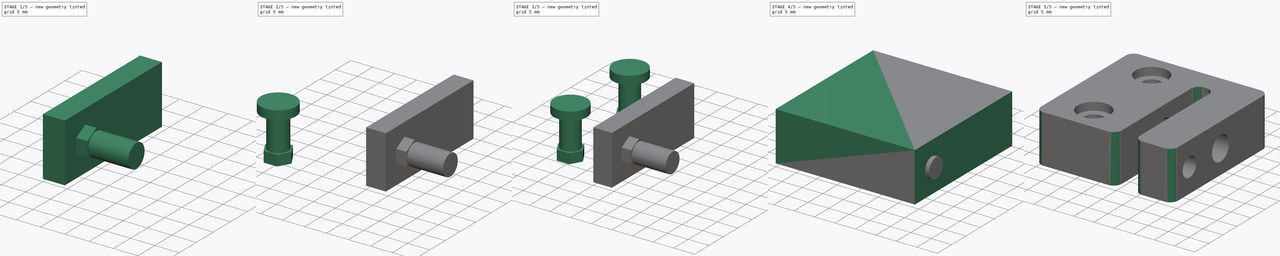
[diagram: build sequence overview — one tinted view per stage of 5, left to right]
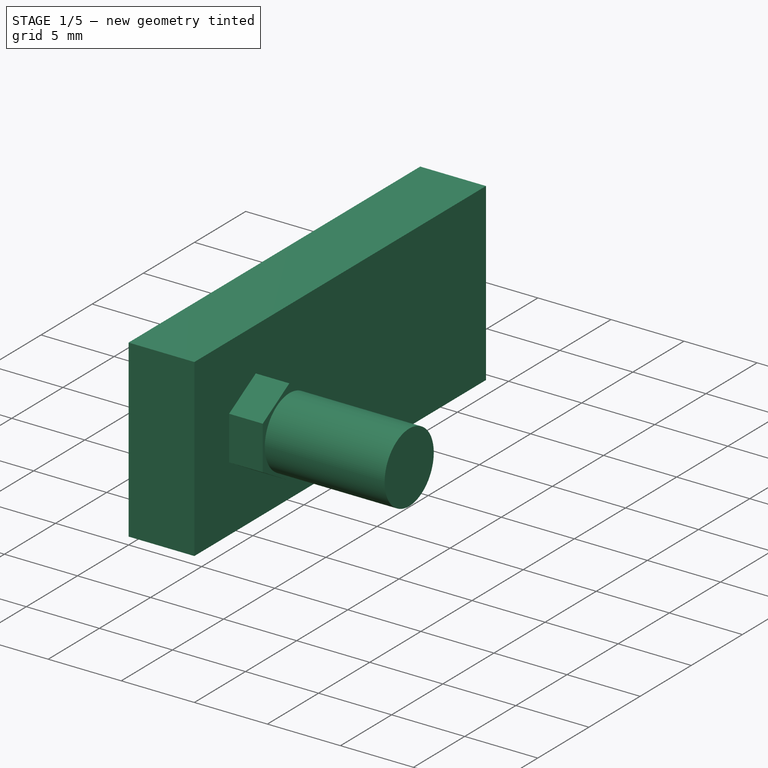
[diagram: stage 1 of 5 — iso view after this stage's code; geometry added in this stage tinted green]
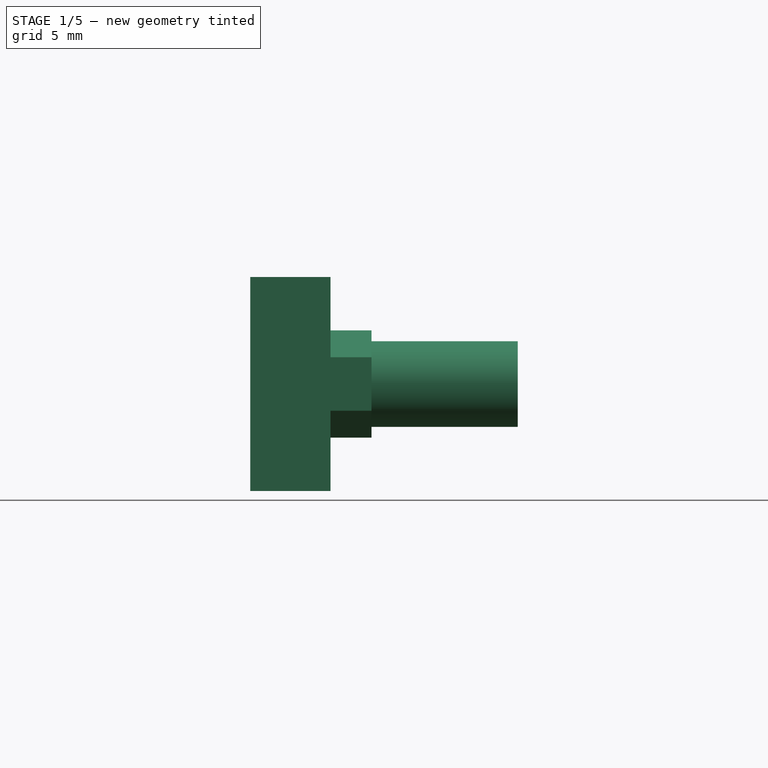
[diagram: stage 1 of 5 — front view after this stage's code; geometry added in this stage tinted green]
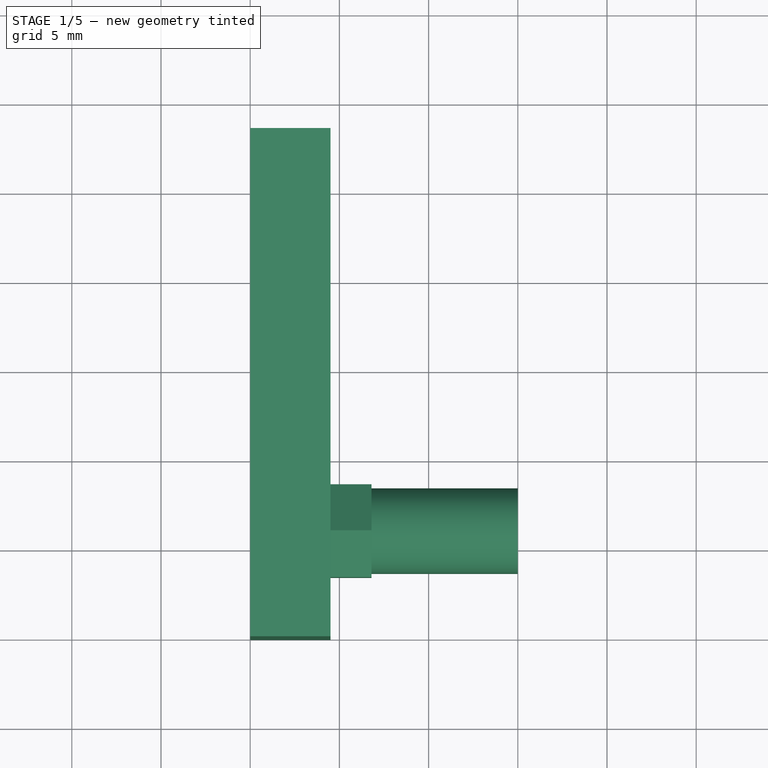
[diagram: stage 1 of 5 — top view after this stage's code; geometry added in this stage tinted green]
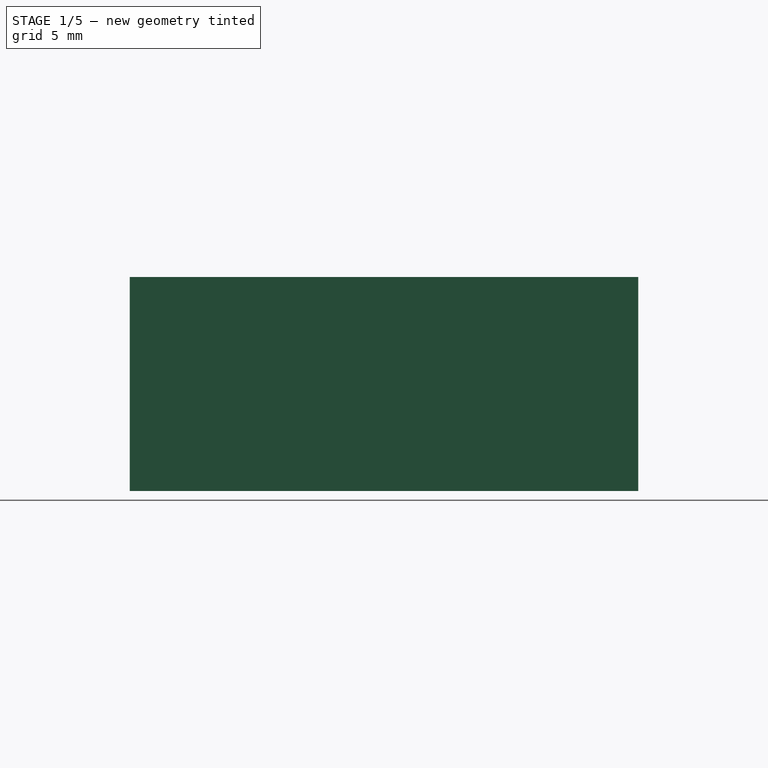
[diagram: stage 1 of 5 — right view after this stage's code; geometry added in this stage tinted green]
FCSTD DOCUMENT  (FreeCAD 0.21R0.20.1)
Label: AntiBacklashNutT8
License: All rights reserved
LicenseURL: https://en.wikipedia.org/wiki/All_rights_reserved
objects: Part::Cylinder×6, Part::MultiFuse×4, App::Link×3, Part::Box×2, Part::Cut×2, Sketcher::SketchObject×1, Part::Extrusion×1, Part::Fillet×1
note: 17 computed .brp shape members not serialized (recipe doc carries the construction recipe); baked Part::Feature solids carry a one-line shape summary decoded from their .brp
EXTERNAL_REF file=../../Fastener/Templates/Nut_DIN934_M4.FCStd obj=Extrude

FEATURE [Part::Box] Box001  label="Cube001"
  AttacherType = Attacher::AttachEngine3D
  Height = 12
  Length = 4.5
  Placement = pos=(20,0,0) rot=(0,0,1;0rad)
  Width = 28.5
FEATURE [Part::Cylinder] Cylinder005
  Angle = 360
  AttacherType = Attacher::AttachEngine3D
  FirstAngle = 0
  Height = 11
  Placement = pos=(24,6,6) rot=(0,1,0;1.5708rad)
  Radius = 2.4
  SecondAngle = 0
FEATURE [Part::MultiFuse] Fusion003
  Shapes = -> [Link002,Cylinder005]
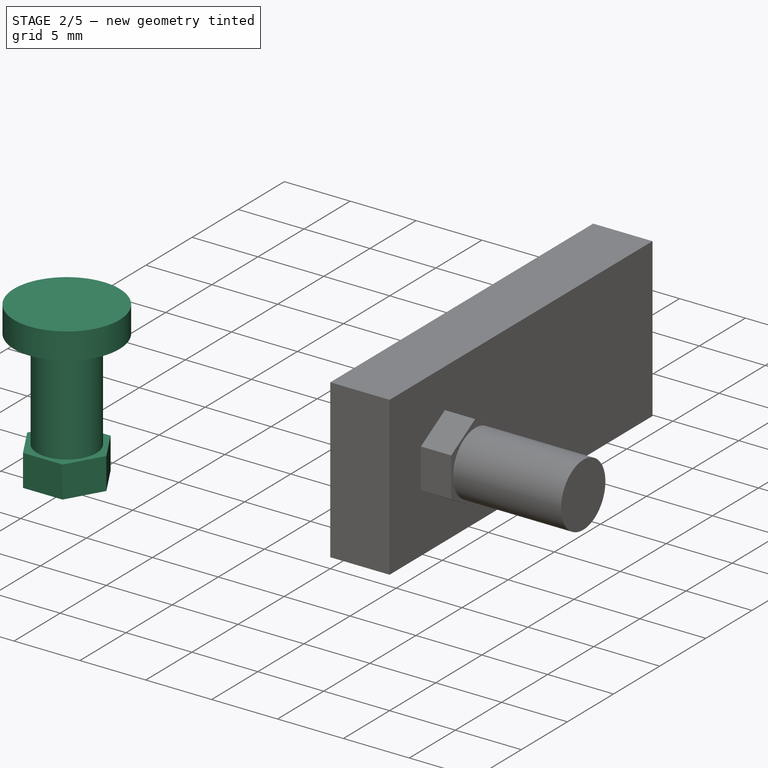
[diagram: stage 2 of 5 — iso view after this stage's code; geometry added in this stage tinted green]
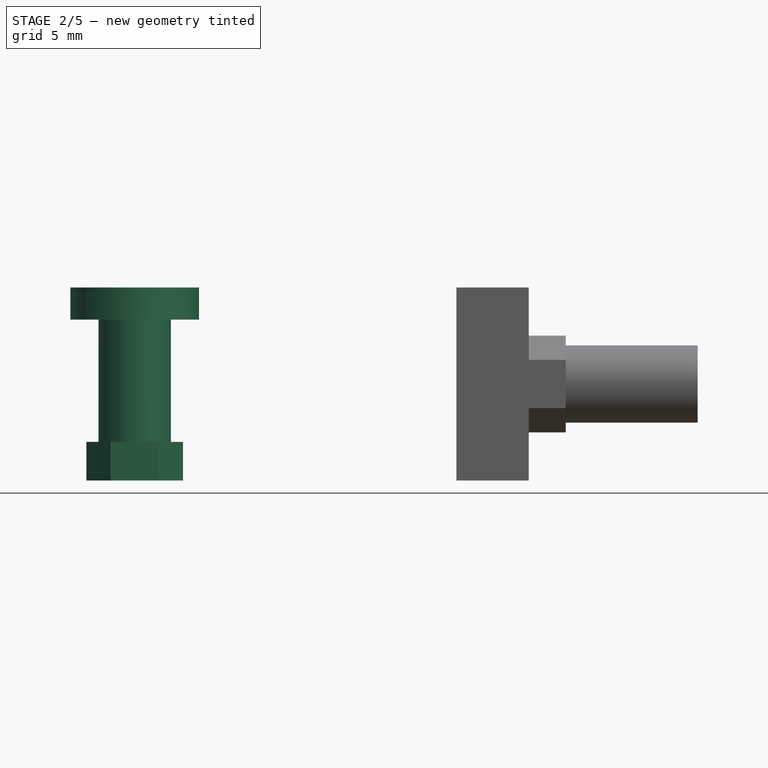
[diagram: stage 2 of 5 — front view after this stage's code; geometry added in this stage tinted green]
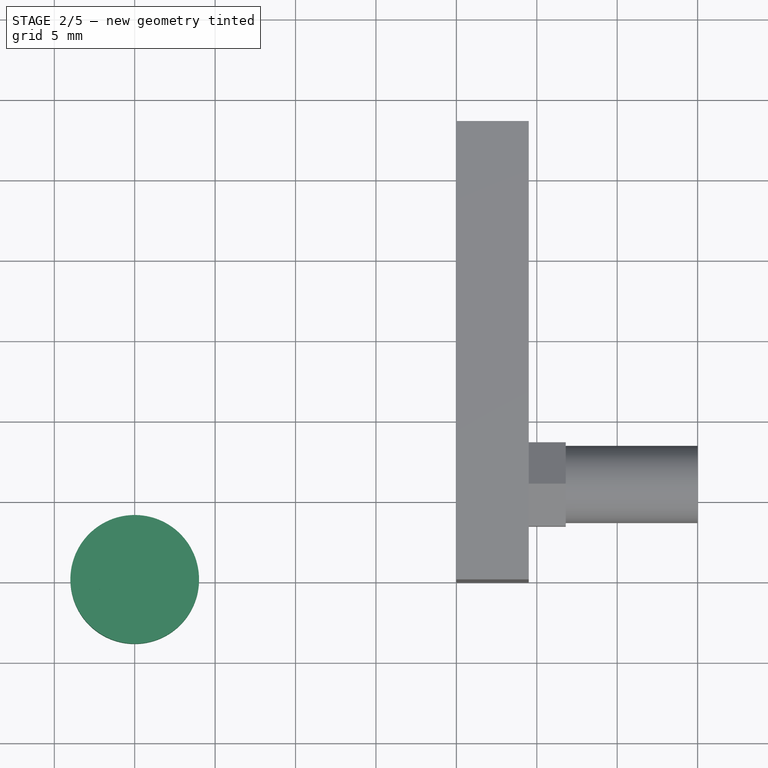
[diagram: stage 2 of 5 — top view after this stage's code; geometry added in this stage tinted green]
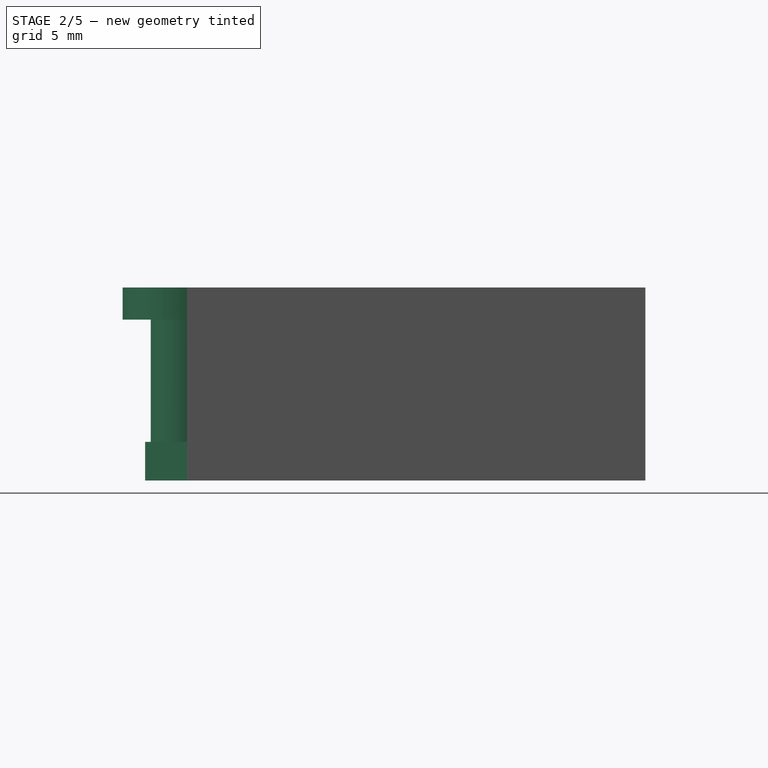
[diagram: stage 2 of 5 — right view after this stage's code; geometry added in this stage tinted green]
FEATURE [Sketcher::SketchObject] Sketch
  FullyConstrained = true
  sketch-geometry (7):
    g0: LineSegment StartX=-3.005 StartY=0 StartZ=0 EndX=-1.5025 EndY=-2.60241 EndZ=0
    g1: LineSegment StartX=-1.5025 StartY=-2.60241 StartZ=0 EndX=1.5025 EndY=-2.60241 EndZ=0
    g2: LineSegment StartX=1.5025 StartY=-2.60241 StartZ=0 EndX=3.005 EndY=-9.7513e-12 EndZ=0
    g3: LineSegment StartX=3.005 StartY=-9.7512e-12 StartZ=0 EndX=1.5025 EndY=2.60241 EndZ=0
    g4: LineSegment StartX=1.5025 StartY=2.60241 StartZ=0 EndX=-1.5025 EndY=2.60241 EndZ=0
    g5: LineSegment StartX=-1.5025 StartY=2.60241 StartZ=0 EndX=-3.005 EndY=0 EndZ=0
    g6: Circle CenterX=0 CenterY=0 CenterZ=0 NormalX=0 NormalY=0 NormalZ=1 AngleXU=0 Radius=3.005
  constraints (16):
    c: Coincident(g0,g1)
    c: Coincident(g1,g2)
    c: Coincident(g2,g3)
    c: Coincident(g3,g4)
    c: Coincident(g4,g5)
    c: Coincident(g5,g0)
    c: Equal(g0, g1-g5) x5
    c: PointOnObject(g0,g6)
    c: PointOnObject(g1,g6)
    c: PointOnObject(g2,g6)
    c: PointOnObject(g3,g6)
    c: PointOnObject(g4,g6)
    c: PointOnObject(g5,g6)
    c: Coincident(g6,g-1)
    c: PointOnObject(g5,g-1)
    c: DistanceX(g0,g2) = 6.01
FEATURE [Part::Extrusion] Extrude  label="DIN934_M005"
  Base = -> Sketch
  Dir = (0,0,1)
  DirMode = 2
  FaceMakerClass = Part::FaceMakerBullseye
  LengthFwd = 2.4
  LengthRev = 0
  Solid = true
  Symmetric = false
FEATURE [Part::Cylinder] Cylinder003
  Angle = 360
  AttacherType = Attacher::AttachEngine3D
  FirstAngle = 0
  Height = 12
  Radius = 2.25
  SecondAngle = 0
FEATURE [Part::Cylinder] Cylinder004
  Angle = 360
  AttacherType = Attacher::AttachEngine3D
  FirstAngle = 0
  Height = 2
  Placement = pos=(0,0,10) rot=(0,0,1;0rad)
  Radius = 4
  SecondAngle = 0
FEATURE [Sketcher::SketchObject] Sketch
  FullyConstrained = true
  sketch-geometry (7):
    g0: LineSegment StartX=-3.005 StartY=0 StartZ=0 EndX=-1.5025 EndY=-2.60241 EndZ=0
    g1: LineSegment StartX=-1.5025 StartY=-2.60241 StartZ=0 EndX=1.5025 EndY=-2.60241 EndZ=0
    g2: LineSegment StartX=1.5025 StartY=-2.60241 StartZ=0 EndX=3.005 EndY=-9.7513e-12 EndZ=0
    g3: LineSegment StartX=3.005 StartY=-9.7512e-12 StartZ=0 EndX=1.5025 EndY=2.60241 EndZ=0
    g4: LineSegment StartX=1.5025 StartY=2.60241 StartZ=0 EndX=-1.5025 EndY=2.60241 EndZ=0
    g5: LineSegment StartX=-1.5025 StartY=2.60241 StartZ=0 EndX=-3.005 EndY=0 EndZ=0
    g6: Circle CenterX=0 CenterY=0 CenterZ=0 NormalX=0 NormalY=0 NormalZ=1 AngleXU=0 Radius=3.005
  constraints (16):
    c: Coincident(g0,g1)
    c: Coincident(g1,g2)
    c: Coincident(g2,g3)
    c: Coincident(g3,g4)
    c: Coincident(g4,g5)
    c: Coincident(g5,g0)
    c: Equal(g0, g1-g5) x5
    c: PointOnObject(g0,g6)
    c: PointOnObject(g1,g6)
    c: PointOnObject(g2,g6)
    c: PointOnObject(g3,g6)
    c: PointOnObject(g4,g6)
    c: PointOnObject(g5,g6)
    c: Coincident(g6,g-1)
    c: PointOnObject(g5,g-1)
    c: DistanceX(g0,g2) = 6.01
FEATURE [Part::Extrusion] Extrude  label="DIN934_M3"
  Base = -> Sketch
  Dir = (0,0,1)
  DirMode = 2
  FaceMakerClass = Part::FaceMakerBullseye
  LengthFwd = 2.4
  LengthRev = 0
  Solid = true
  Symmetric = false
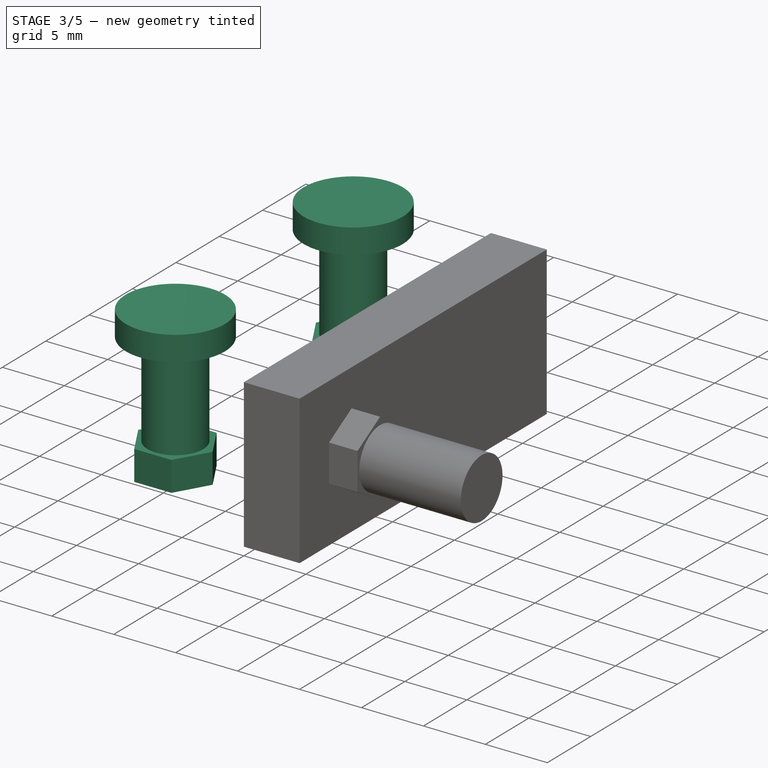
[diagram: stage 3 of 5 — iso view after this stage's code; geometry added in this stage tinted green]
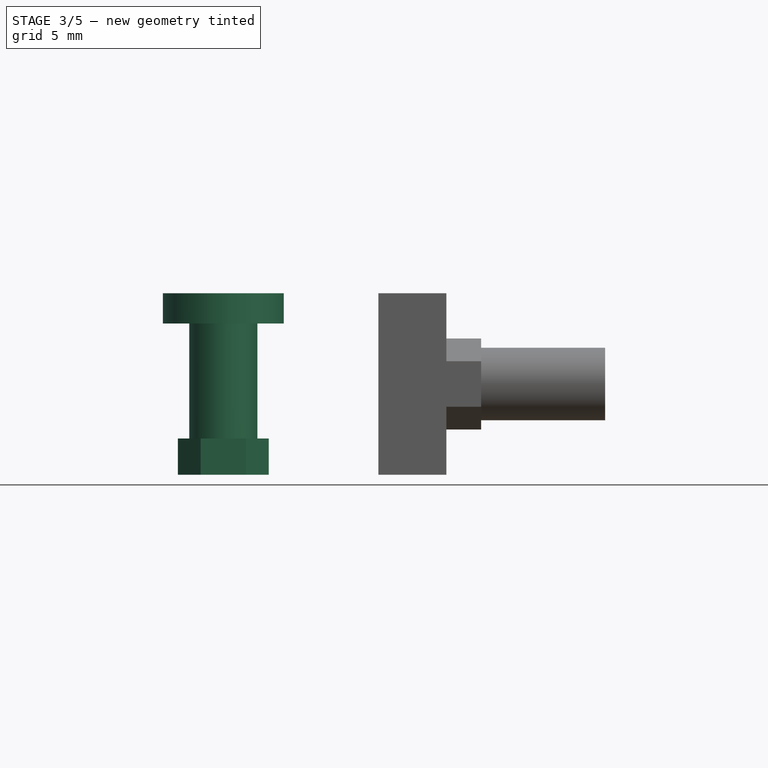
[diagram: stage 3 of 5 — front view after this stage's code; geometry added in this stage tinted green]
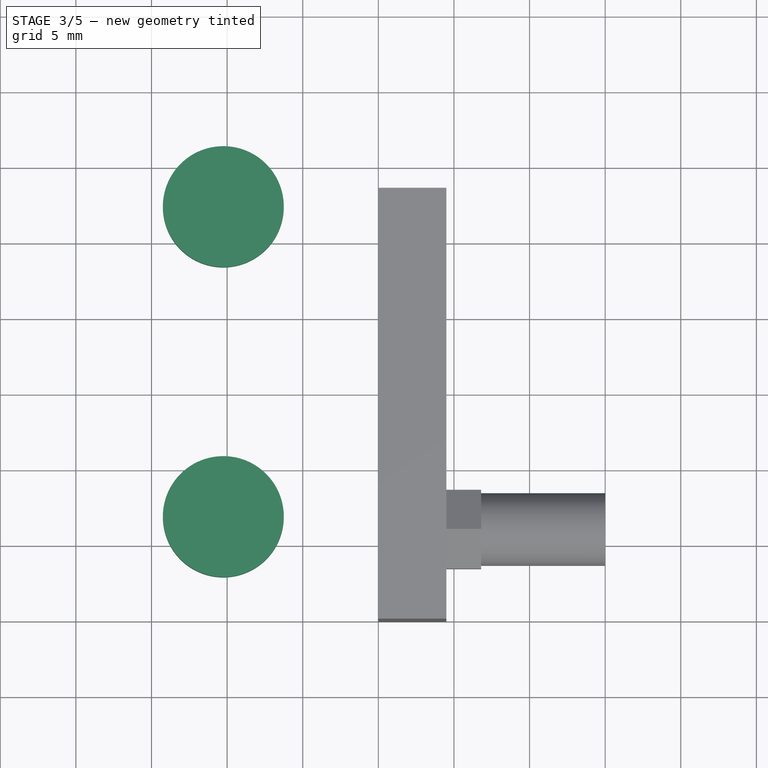
[diagram: stage 3 of 5 — top view after this stage's code; geometry added in this stage tinted green]
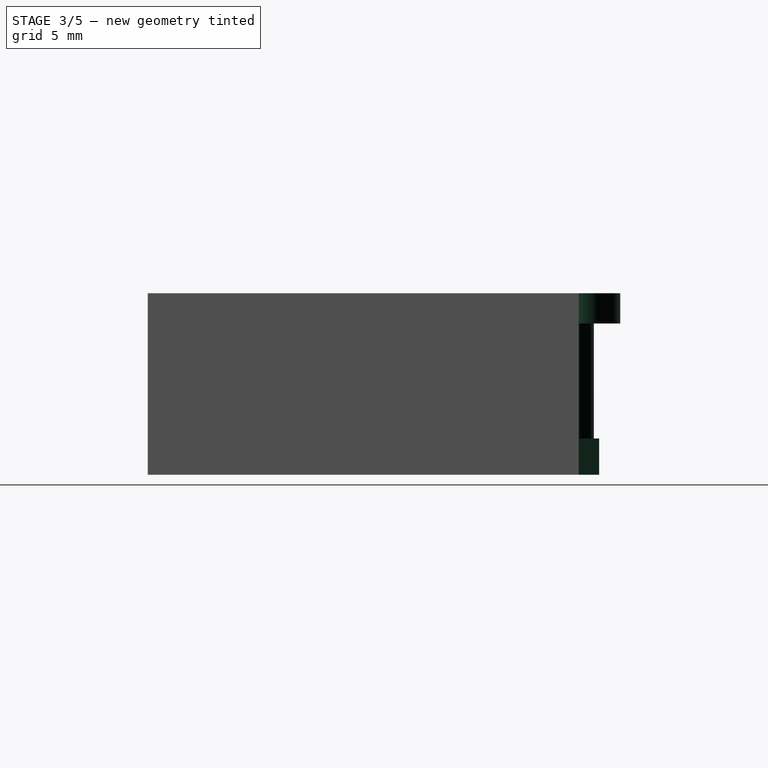
[diagram: stage 3 of 5 — right view after this stage's code; geometry added in this stage tinted green]
FEATURE [Part::Cylinder] Cylinder001  label="Cylinder"
  Angle = 360
  AttacherType = Attacher::AttachEngine3D
  FirstAngle = 0
  Height = 12
  Radius = 2.25
  SecondAngle = 0
FEATURE [Part::Cylinder] Cylinder002
  Angle = 360
  AttacherType = Attacher::AttachEngine3D
  FirstAngle = 0
  Height = 2
  Placement = pos=(0,0,10) rot=(0,0,1;0rad)
  Radius = 4
  SecondAngle = 0
FEATURE [App::Link] Link  label="DIN934_M4"
  LinkedObject = -> <external ../../Fastener/Templates/Nut_DIN934_M4.FCStd>#Extrude
FEATURE [Part::MultiFuse] Fusion
  Placement = pos=(9.75,6.75,0) rot=(0,0,1;0rad)
  Shapes = -> [Link,Cylinder001,Cylinder002]
FEATURE [App::Link] Link001  label="DIN934_M006"
  LinkedObject = -> Extrude
FEATURE [Part::MultiFuse] Fusion001
  Placement = pos=(9.75,27.25,0) rot=(0,0,1;0rad)
  Shapes = -> [Link001,Cylinder003,Cylinder004]
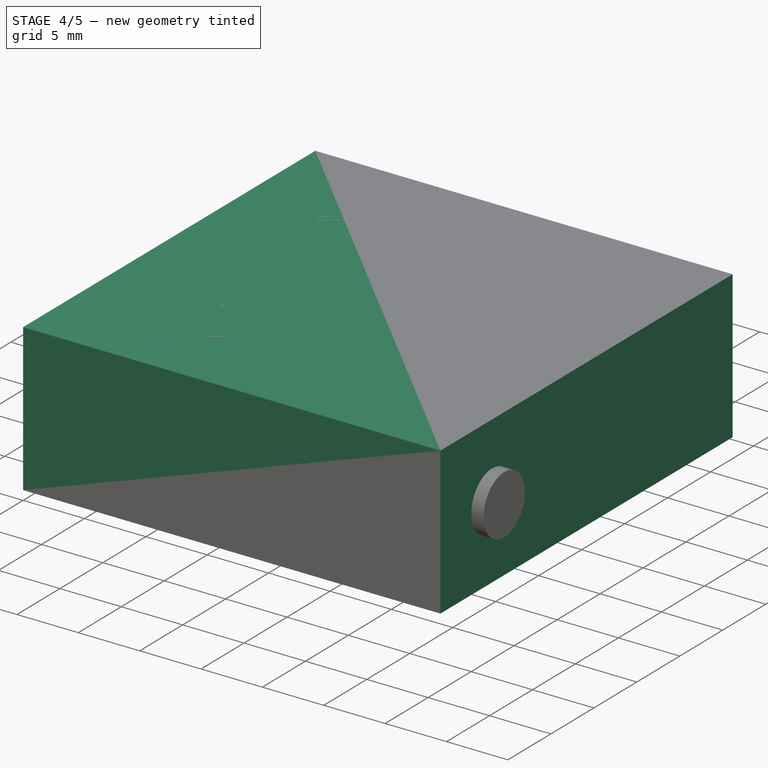
[diagram: stage 4 of 5 — iso view after this stage's code; geometry added in this stage tinted green]
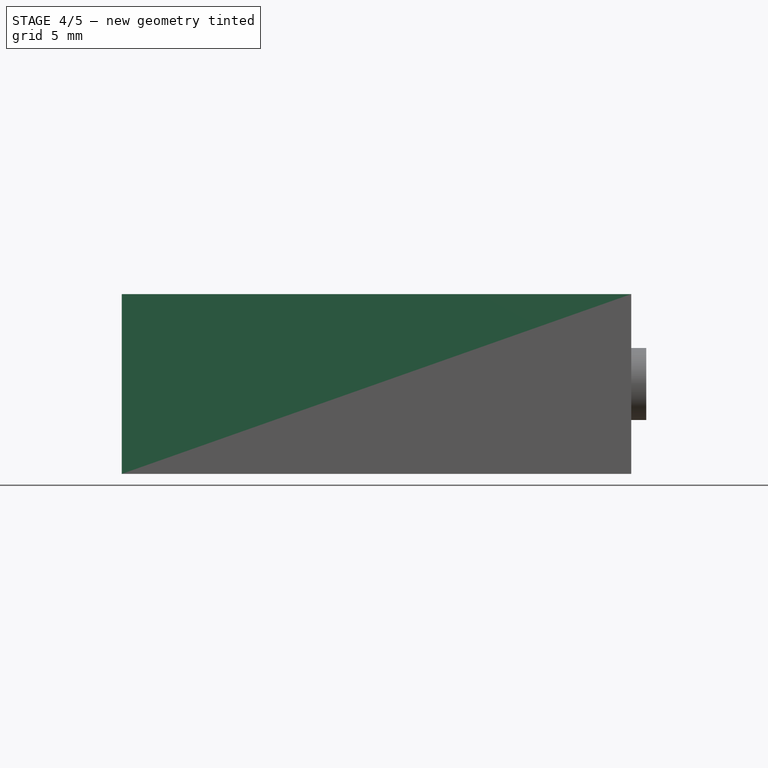
[diagram: stage 4 of 5 — front view after this stage's code; geometry added in this stage tinted green]
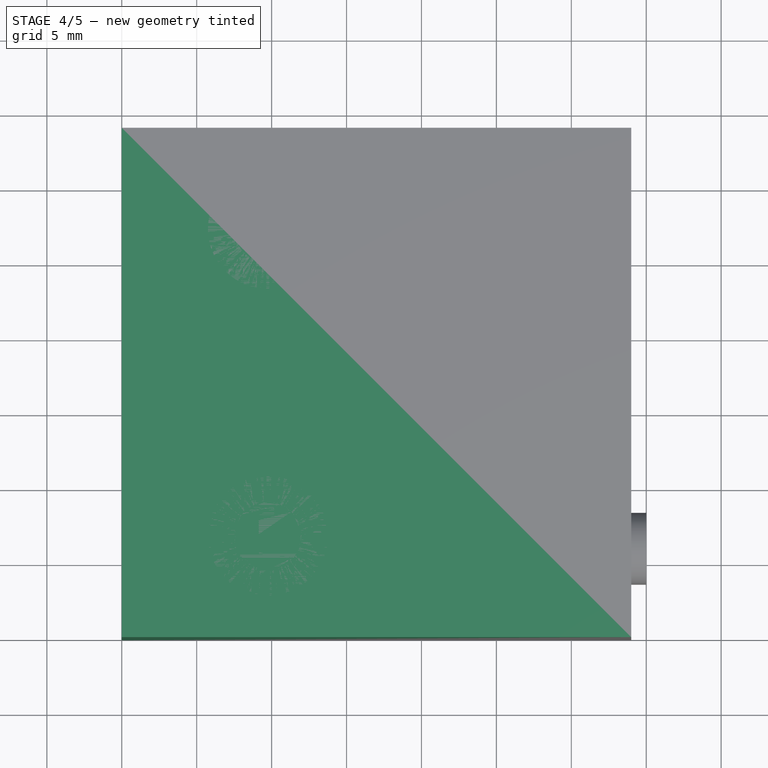
[diagram: stage 4 of 5 — top view after this stage's code; geometry added in this stage tinted green]
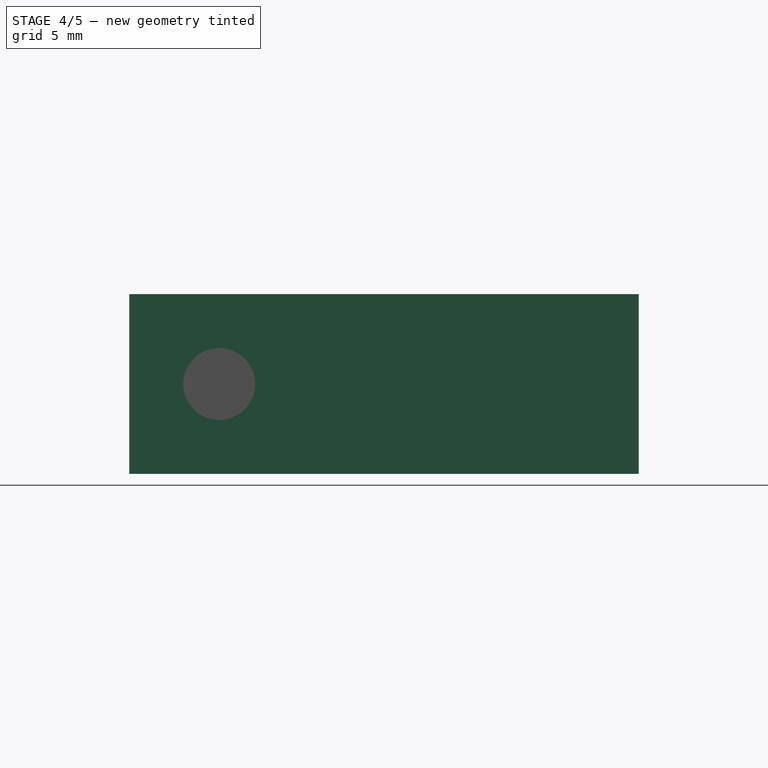
[diagram: stage 4 of 5 — right view after this stage's code; geometry added in this stage tinted green]
FEATURE [Part::Box] Box  label="Cube"
  AttacherType = Attacher::AttachEngine3D
  Height = 12
  Length = 34
  Width = 34
FEATURE [Part::Cylinder] Cylinder  label="T8CoreHole"
  Angle = 360
  AttacherType = Attacher::AttachEngine3D
  FirstAngle = 0
  Height = 34
  Placement = pos=(0,17,6) rot=(0,1,0;1.5708rad)
  Radius = 3
  SecondAngle = 0
FEATURE [App::Link] Link002  label="DIN934_M007"
  LinkPlacement = pos=(24.4,6,6) rot=(0,1,0;1.5708rad)
  LinkedObject = -> <external ../../Fastener/Templates/Nut_DIN934_M4.FCStd>#Extrude
  Placement = pos=(24.4,6,6) rot=(0,1,0;1.5708rad)
FEATURE [Part::MultiFuse] Fusion002
  Shapes = -> [Cylinder,Fusion,Fusion001,Box001]
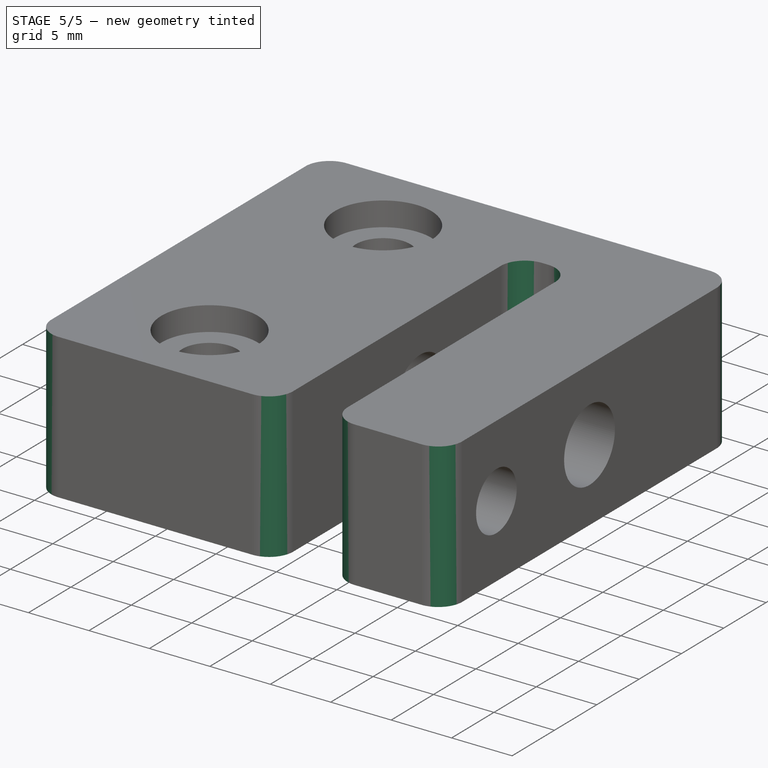
[diagram: stage 5 of 5 — iso view after this stage's code; geometry added in this stage tinted green]
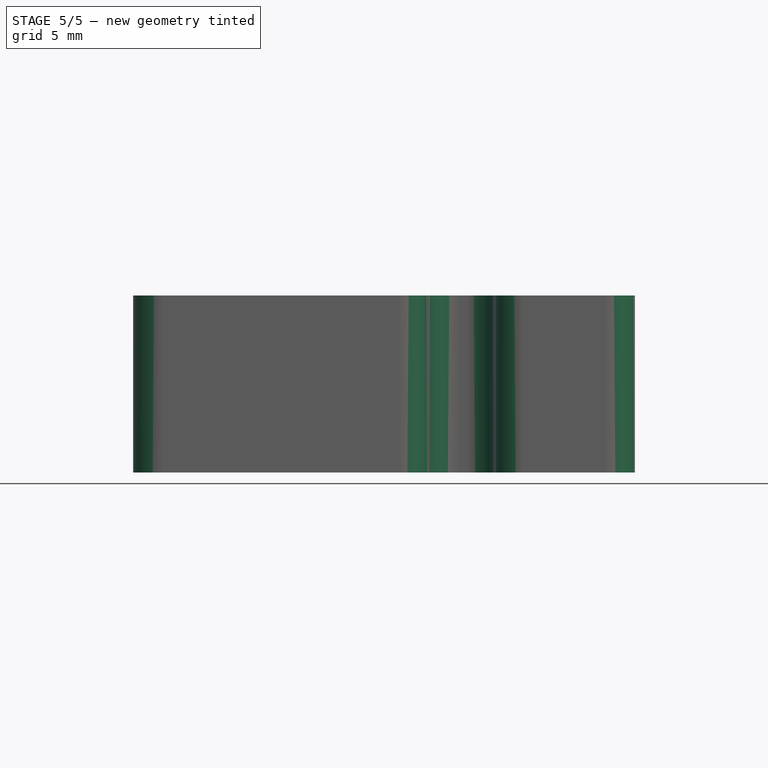
[diagram: stage 5 of 5 — front view after this stage's code; geometry added in this stage tinted green]
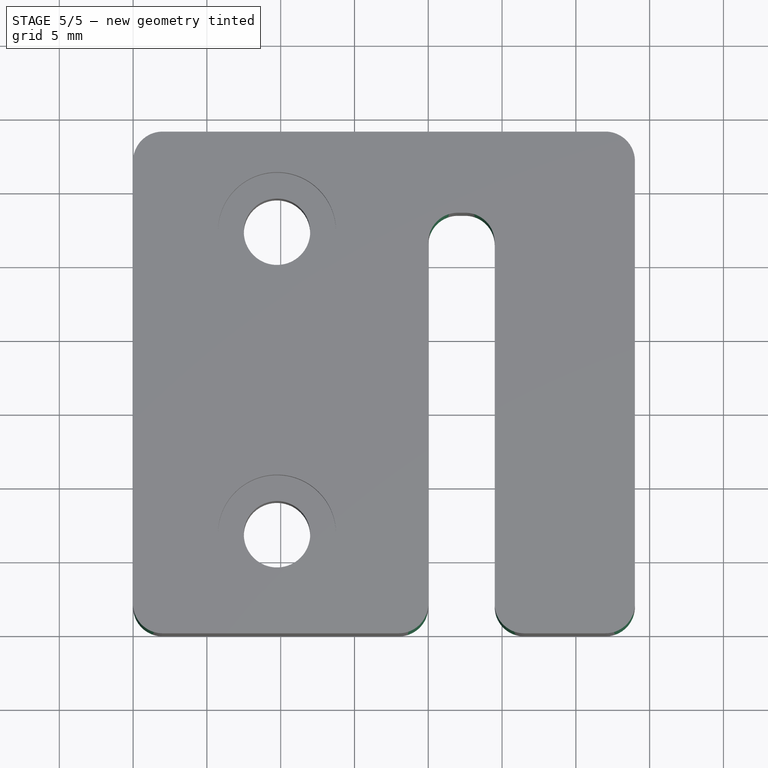
[diagram: stage 5 of 5 — top view after this stage's code; geometry added in this stage tinted green]
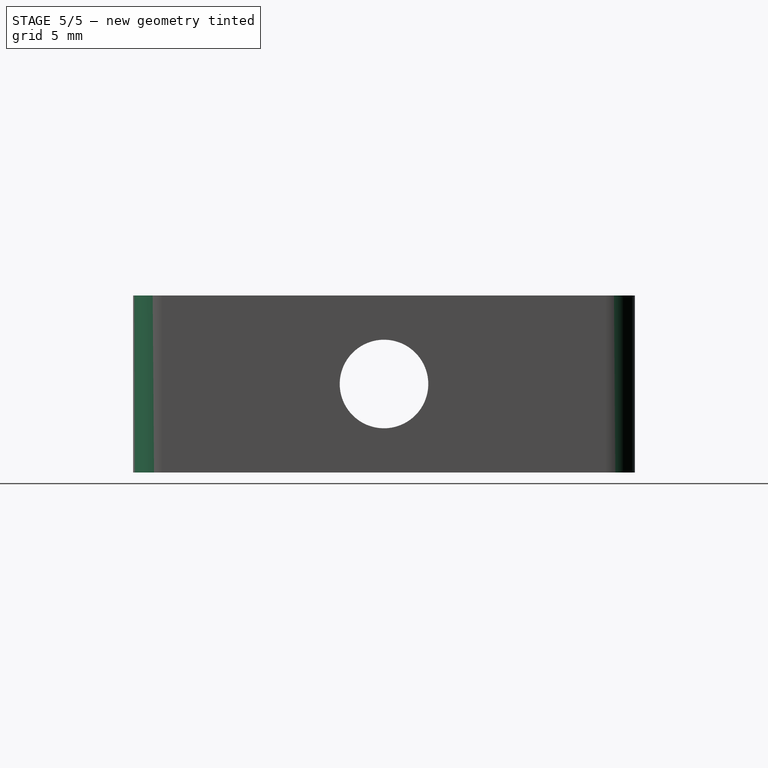
[diagram: stage 5 of 5 — right view after this stage's code; geometry added in this stage tinted green]
FEATURE [Part::Cut] Cut
  Base = -> Box
  Tool = -> Fusion002
FEATURE [Part::Cut] Cut001
  Base = -> Cut
  Tool = -> Fusion003
FEATURE [Part::Fillet] Fillet
  Base = -> Cut001
  Edges = 8 edges r=2: [Edge1,Edge4,Edge7,Edge35,Edge38,Edge39,Edge42,Edge43]

RESOLVED EXTERNAL PARTS (link-assembly join: the EXTERNAL_REF files above that resolve inside this repo's crawl, each included once):
---- part ../../Fastener/Templates/Nut_DIN934_M4.FCStd = doc fcstd_294c8c891653 ----
FCSTD DOCUMENT  (FreeCAD 0.21R0.20.1)
Label: Nut_DIN934_M3
License: All rights reserved
LicenseURL: https://en.wikipedia.org/wiki/All_rights_reserved
objects: Sketcher::SketchObject×1, Part::Extrusion×1
note: 2 computed .brp shape members not serialized (recipe doc carries the construction recipe); baked Part::Feature solids carry a one-line shape summary decoded from their .brp
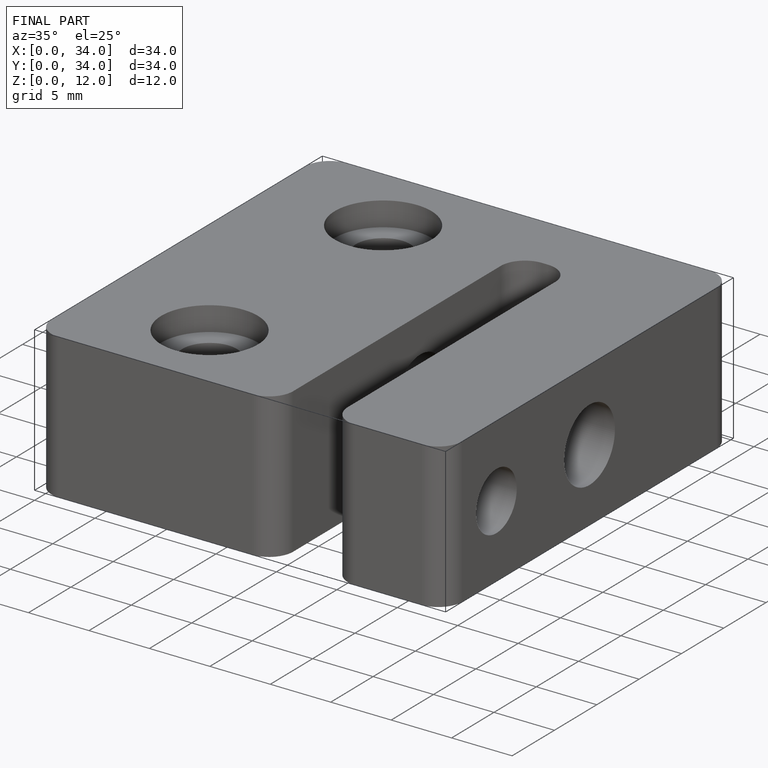
[diagram: finished part — iso view with bounding-box wireframe]
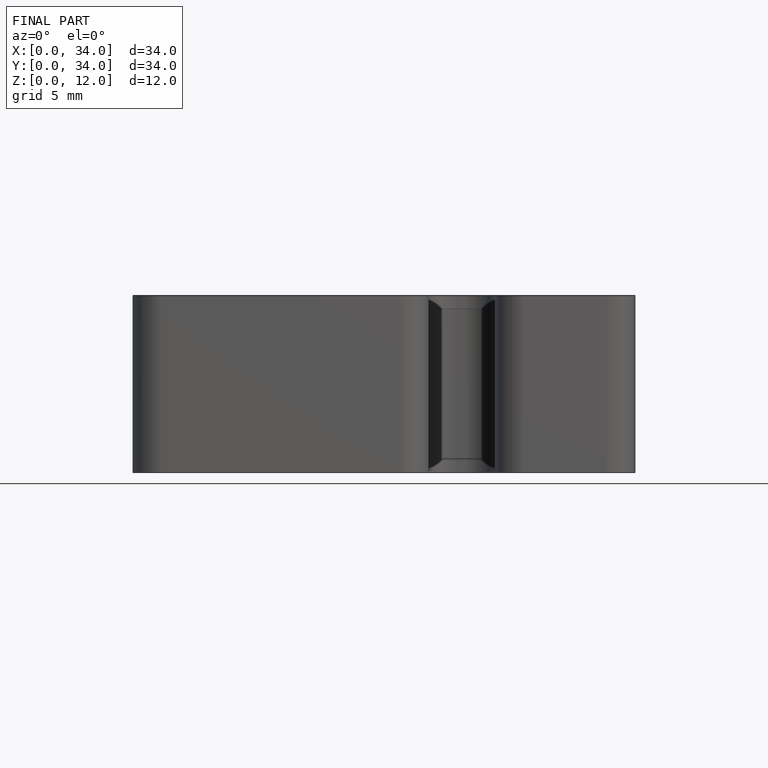
[diagram: finished part — front view with bounding-box wireframe]
